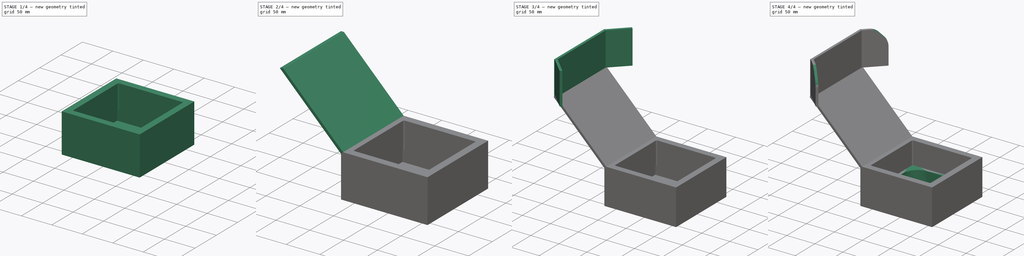
[diagram: build sequence overview — one tinted view per stage of 4, left to right]
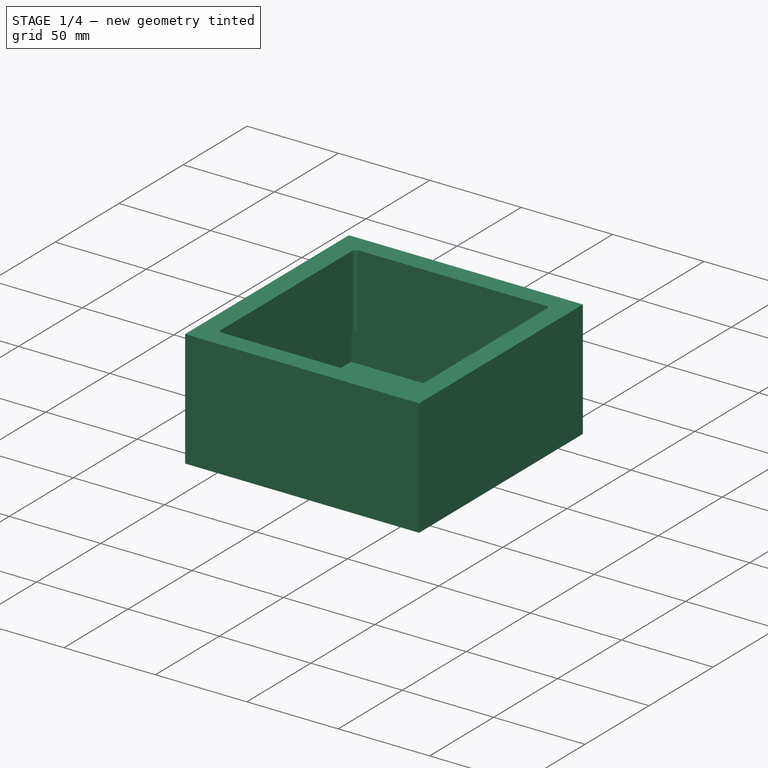
[diagram: stage 1 of 4 — iso view after this stage's code; geometry added in this stage tinted green]
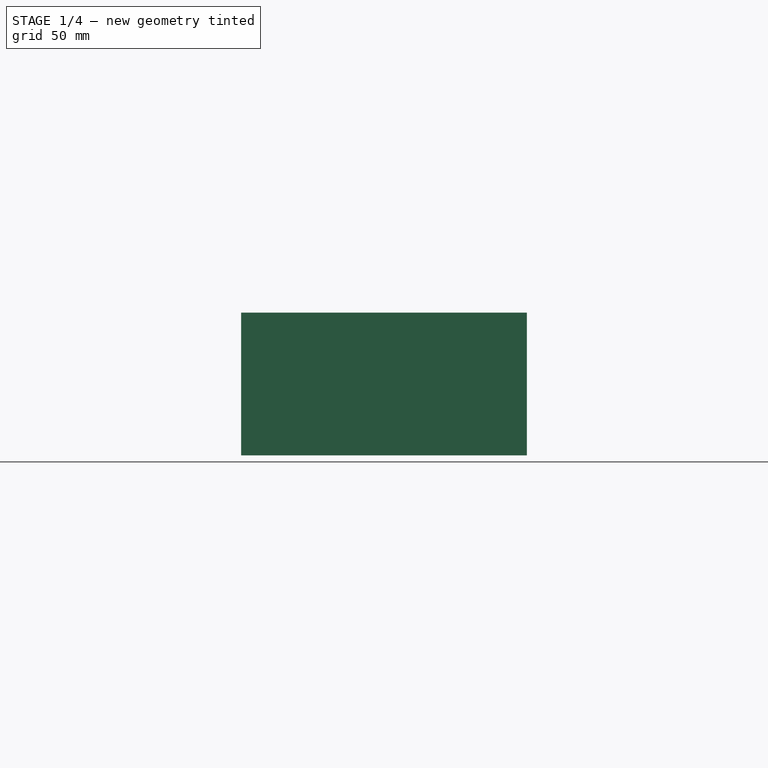
[diagram: stage 1 of 4 — front view after this stage's code; geometry added in this stage tinted green]
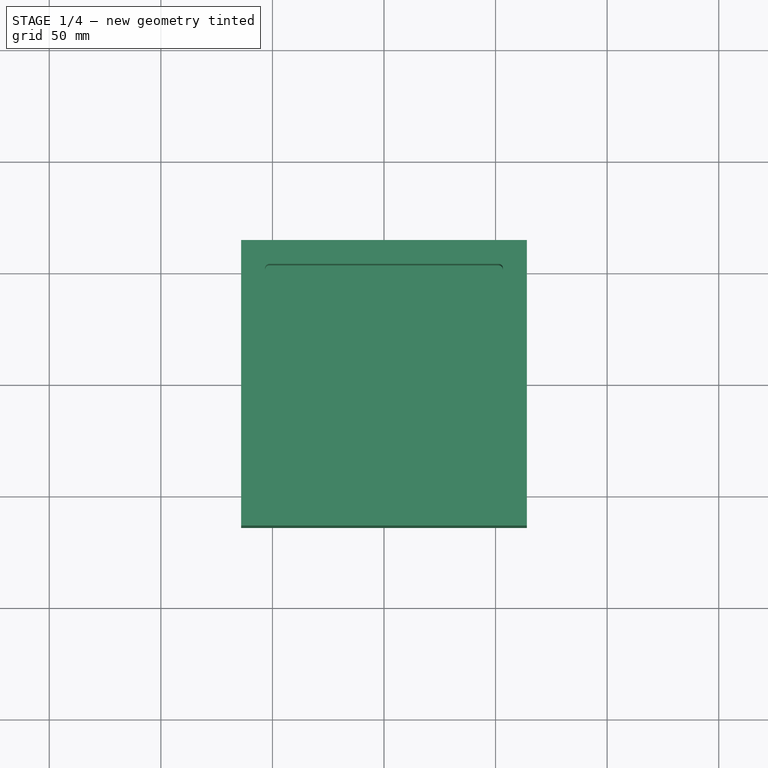
[diagram: stage 1 of 4 — top view after this stage's code; geometry added in this stage tinted green]
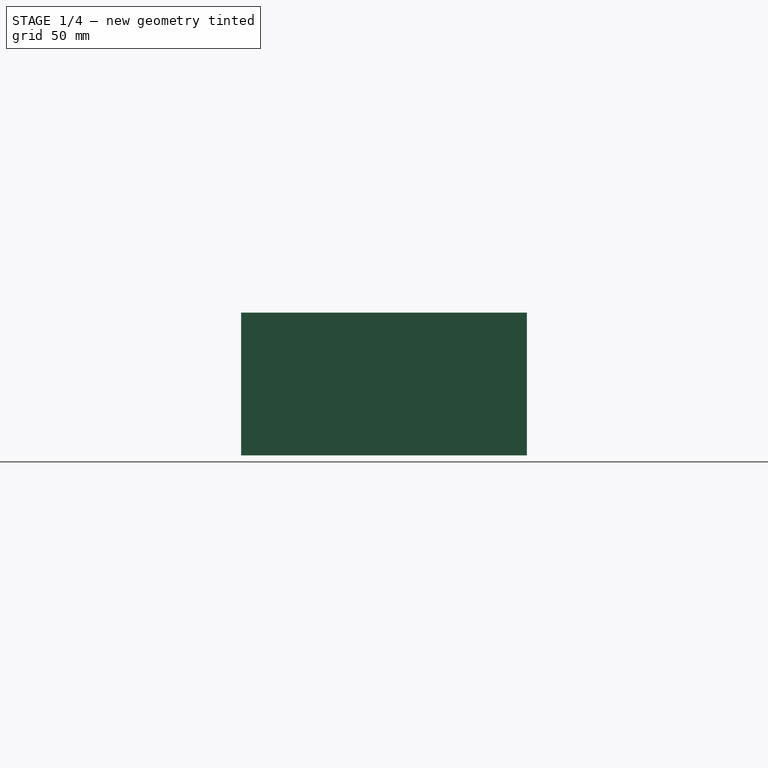
[diagram: stage 1 of 4 — right view after this stage's code; geometry added in this stage tinted green]
FCSTD DOCUMENT  (FreeCAD 0.18R15969 (Git))
Label: GridBox
License: All rights reserved
LicenseURL: http://en.wikipedia.org/wiki/All_rights_reserved
objects: PartDesign::Pad×8, TechDraw::DrawViewDimension×6, Sketcher::SketchObject×4, PartDesign::Chamfer×4, PartDesign::Body×3, TechDraw::DrawProjGroupItem×3, PartDesign::Fillet×1, TechDraw::DrawSVGTemplate×1, TechDraw::DrawProjGroup×1, TechDraw::DrawPage×1
note: 28 computed .brp shape members not serialized (recipe doc carries the construction recipe); baked Part::Feature solids carry a one-line shape summary decoded from their .brp

FEATURE [Sketcher::SketchObject] Sketch
  MapMode = 5
  Support = -> [XY_Plane]
  sketch-geometry (18):
    g0: LineSegment StartX=-60 StartY=-60 StartZ=0 EndX=60 EndY=-60 EndZ=0
    g1: LineSegment StartX=60 StartY=-60 StartZ=0 EndX=60 EndY=60 EndZ=0
    g2: LineSegment StartX=60 StartY=60 StartZ=0 EndX=-60 EndY=60 EndZ=0
    g3: LineSegment StartX=-60 StartY=60 StartZ=0 EndX=-60 EndY=-60 EndZ=0
    g4: LineSegment [constr] StartX=-60 StartY=60 StartZ=0 EndX=-7.1e-15 EndY=0 EndZ=0
    g5: LineSegment [constr] StartX=0 StartY=0 StartZ=0 EndX=60 EndY=60 EndZ=0
    g6: LineSegment [constr] StartX=0 StartY=0 StartZ=0 EndX=-60 EndY=-60 EndZ=0
    g7: LineSegment StartX=-51.3 StartY=-53.3 StartZ=0 EndX=51.3 EndY=-53.3 EndZ=0
    g8: LineSegment StartX=53.3 StartY=-51.3 StartZ=0 EndX=53.3 EndY=51.3 EndZ=0
    g9: LineSegment StartX=51.3 StartY=53.3 StartZ=0 EndX=-51.3 EndY=53.3 EndZ=0
    g10: LineSegment StartX=-53.3 StartY=51.3 StartZ=0 EndX=-53.3 EndY=-51.3 EndZ=0
    g11: ArcOfCircle CenterX=-51.3 CenterY=51.3 CenterZ=0 NormalX=0 NormalY=0 NormalZ=1 AngleXU=0 Radius=2 StartAngle=1.5708 EndAngle=3.14159
    g12: ArcOfCircle CenterX=51.3 CenterY=51.3 CenterZ=0 NormalX=0 NormalY=0 NormalZ=1 AngleXU=0 Radius=2 StartAngle=0 EndAngle=1.5708
    g13: ArcOfCircle CenterX=-51.3 CenterY=-51.3 CenterZ=0 NormalX=0 NormalY=0 NormalZ=1 AngleXU=0 Radius=2 StartAngle=3.14159 EndAngle=4.71239
    g14: ArcOfCircle CenterX=51.3 CenterY=-51.3 CenterZ=0 NormalX=0 NormalY=0 NormalZ=1 AngleXU=0 Radius=2 StartAngle=4.71239 EndAngle=6.28319
    g15: LineSegment [constr] StartX=-51.3 StartY=51.3 StartZ=0 EndX=0 EndY=0 EndZ=0
    g16: LineSegment [constr] StartX=0 StartY=0 StartZ=0 EndX=51.3 EndY=51.3 EndZ=0
    g17: LineSegment [constr] StartX=0 StartY=0 StartZ=0 EndX=-51.3 EndY=-51.3 EndZ=0
  constraints (44):
    c: Coincident(g0,g1)
    c: Coincident(g1,g2)
    c: Coincident(g2,g3)
    c: Coincident(g3,g0)
    c: Horizontal(g0)
    c: Horizontal(g2)
    c: Vertical(g1)
    c: Vertical(g3)
    c: Coincident(g4,g2)
    c: Coincident(g4,g-1)
    c: Coincident(g5,g-1)
    c: Coincident(g5,g1)
    c: Coincident(g6,g-1)
    c: Coincident(g6,g0)
    c: Equal(g6,g4)
    c: Equal(g4,g5)
    c: DistanceX(g2,g2) = 120
    c: DistanceY(g3,g3) = 120
    c: Horizontal(g7)
    c: Horizontal(g9)
    c: Vertical(g8)
    c: Vertical(g10)
    c: Tangent(g10,g11) = -1.5708
    c: Tangent(g9,g11) = -1.5708
    c: Tangent(g9,g12) = -1.5708
    c: Tangent(g8,g12) = -1.5708
    c: Tangent(g10,g13) = -1.5708
    c: Tangent(g7,g13) = -1.5708
    c: Tangent(g7,g14) = -1.5708
    c: Tangent(g8,g14) = -1.5708
    c: Equal(g9,g10)
    c: Equal(g13,g11)
    c: Equal(g11,g12)
    c: Equal(g12,g14)
    c: Coincident(g15,g11)
    c: Coincident(g15,g-1)
    c: Coincident(g16,g-1)
    c: Coincident(g16,g12)
    c: Coincident(g17,g-1)
    c: Coincident(g17,g13)
    c: Equal(g17,g15)
    c: Equal(g15,g16)
    c: DistanceX(g10,g8) = 106.6
    c: Radius(g11) = 2
FEATURE [PartDesign::Pad] Pad
  Length = 40
  Length2 = 100
  Profile = -> Sketch
  Refine = true
  Type = 0
FEATURE [PartDesign::Body] Body001  label="Lower"
  Group = -> [Sketch001,Pad001]
  Origin = -> Origin001
  Tip = -> Pad001
FEATURE [Sketcher::SketchObject] Sketch002
  AttachmentOffset = pos=(0,0,-20) rot=(0,0,1;0rad)
  MapMode = 5
  Placement = pos=(0,0,-20) rot=(0,0,1;0rad)
  Support = -> [XY_Plane002]
  sketch-geometry (5):
    g0: LineSegment StartX=64 StartY=64 StartZ=0 EndX=-64 EndY=64 EndZ=0
    g1: LineSegment StartX=-64 StartY=64 StartZ=0 EndX=-64 EndY=-64 EndZ=0
    g2: LineSegment StartX=-64 StartY=-64 StartZ=0 EndX=64 EndY=-64 EndZ=0
    g3: LineSegment StartX=64 StartY=-64 StartZ=0 EndX=64 EndY=64 EndZ=0
    g4: Circle [constr] CenterX=0 CenterY=0 CenterZ=0 NormalX=0 NormalY=0 NormalZ=1 AngleXU=0 Radius=90.5097
  constraints (14):
    c: Coincident(g0,g1)
    c: Coincident(g1,g2)
    c: Coincident(g2,g3)
    c: Coincident(g3,g0)
    c: Equal(g0,g1)
    c: Equal(g0,g2)
    c: Equal(g0,g3)
    c: PointOnObject(g0,g4)
    c: PointOnObject(g1,g4)
    c: PointOnObject(g2,g4)
    c: PointOnObject(g3,g4)
    c: Coincident(g4,g-1)
    c: Horizontal(g0)
    c: DistanceX(g0,g0) = 128
FEATURE [PartDesign::Pad] Pad002
  Length = 4
  Length2 = 100
  Profile = -> Sketch002
  Refine = true
  Reversed = true
  Type = 0
FEATURE [Sketcher::SketchObject] Sketch003
  MapMode = 5
  Placement = pos=(0,0,-20) rot=(0,0,1;0rad)
  Support = -> [Pad002]
  sketch-geometry (10):
    g0: LineSegment StartX=64 StartY=64 StartZ=0 EndX=-64 EndY=64 EndZ=0
    g1: LineSegment StartX=-64 StartY=64 StartZ=0 EndX=-64 EndY=-64 EndZ=0
    g2: LineSegment StartX=-64 StartY=-64 StartZ=0 EndX=64 EndY=-64 EndZ=0
    g3: LineSegment StartX=64 StartY=-64 StartZ=0 EndX=64 EndY=64 EndZ=0
    g4: Circle [constr] CenterX=0 CenterY=0 CenterZ=0 NormalX=0 NormalY=0 NormalZ=1 AngleXU=0 Radius=90.5097
    g5: LineSegment StartX=60 StartY=60 StartZ=0 EndX=-60 EndY=60 EndZ=0
    g6: LineSegment StartX=-60 StartY=60 StartZ=0 EndX=-60 EndY=-60 EndZ=0
    g7: LineSegment StartX=-60 StartY=-60 StartZ=0 EndX=60 EndY=-60 EndZ=0
    g8: LineSegment StartX=60 StartY=-60 StartZ=0 EndX=60 EndY=60 EndZ=0
    g9: Circle [constr] CenterX=0 CenterY=0 CenterZ=0 NormalX=0 NormalY=0 NormalZ=1 AngleXU=0 Radius=84.8528
  constraints (28):
    c: Coincident(g0,g1)
    c: Coincident(g1,g2)
    c: Coincident(g2,g3)
    c: Coincident(g3,g0)
    c: Equal(g0,g1)
    c: Equal(g0,g2)
    c: Equal(g0,g3)
    c: PointOnObject(g0,g4)
    c: PointOnObject(g1,g4)
    c: PointOnObject(g2,g4)
    c: PointOnObject(g3,g4)
    c: Coincident(g4,g-1)
    c: DistanceX(g0,g0) = 128
    c: Horizontal(g0)
    c: Coincident(g5,g6)
    c: Coincident(g6,g7)
    c: Coincident(g7,g8)
    c: Coincident(g8,g5)
    c: Equal(g5,g6)
    c: Equal(g5,g7)
    c: Equal(g5,g8)
    c: PointOnObject(g5,g9)
    c: PointOnObject(g6,g9)
    c: PointOnObject(g7,g9)
    c: PointOnObject(g8,g9)
    c: Coincident(g9,g-1)
    c: Horizontal(g5)
    c: DistanceX(g5,g5) = 120
FEATURE [PartDesign::Pad] Pad003
  BaseFeature = -> Pad002
  Length = 60
  Length2 = 100
  Profile = -> Sketch003
  Refine = true
  Type = 0
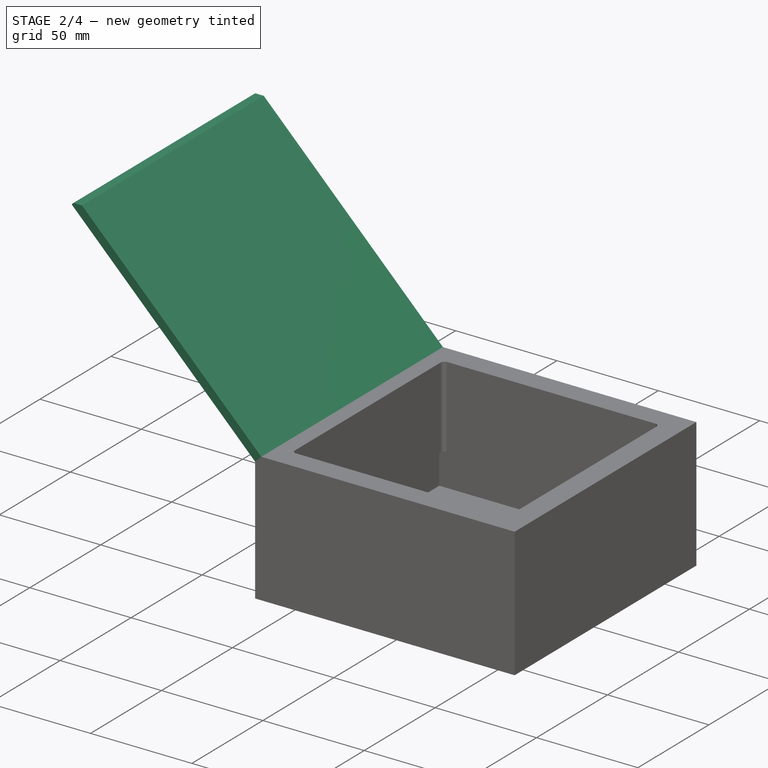
[diagram: stage 2 of 4 — iso view after this stage's code; geometry added in this stage tinted green]
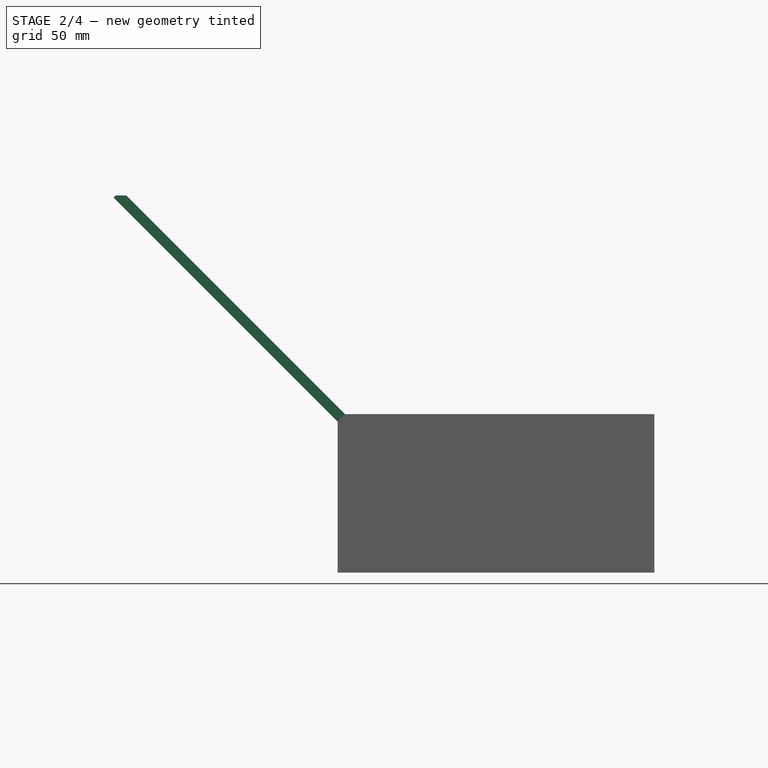
[diagram: stage 2 of 4 — front view after this stage's code; geometry added in this stage tinted green]
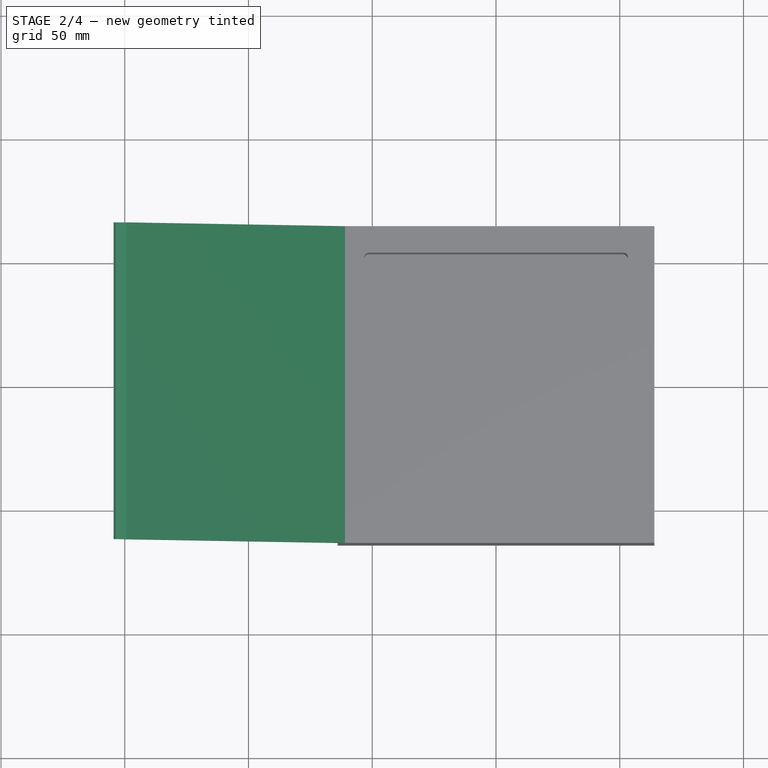
[diagram: stage 2 of 4 — top view after this stage's code; geometry added in this stage tinted green]
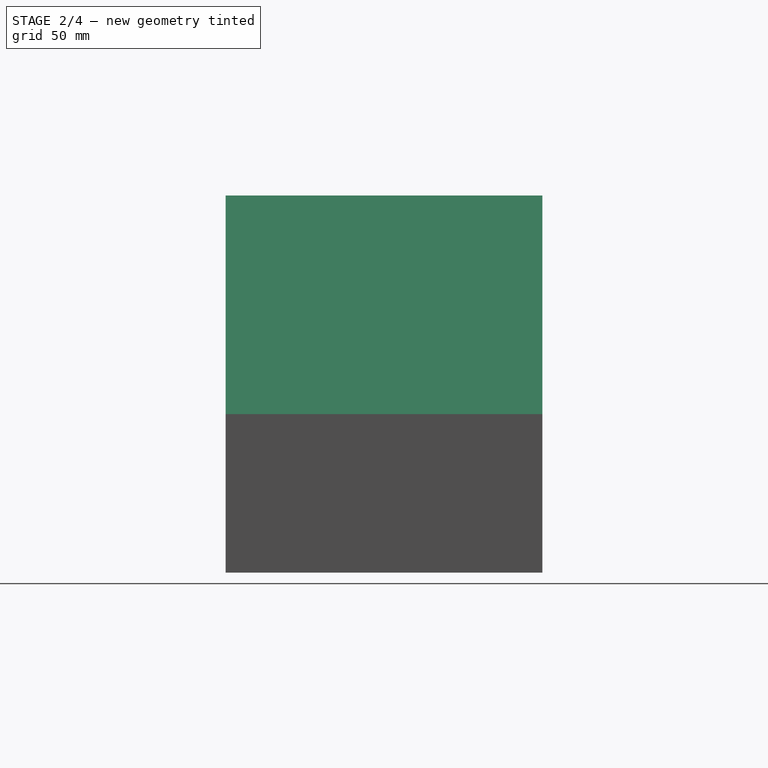
[diagram: stage 2 of 4 — right view after this stage's code; geometry added in this stage tinted green]
FEATURE [PartDesign::Chamfer] Chamfer
  Base = -> Pad003 [Edge8]
  BaseFeature = -> Pad003
  Size = 3
FEATURE [PartDesign::Pad] Pad004
  BaseFeature = -> Chamfer
  Length = 128
  Length2 = 100
  Profile = -> Chamfer [Face3]
  Refine = true
  Type = 0
FEATURE [PartDesign::Chamfer] Chamfer001
  Base = -> Pad004 [Edge23]
  BaseFeature = -> Pad004
  Size = 3
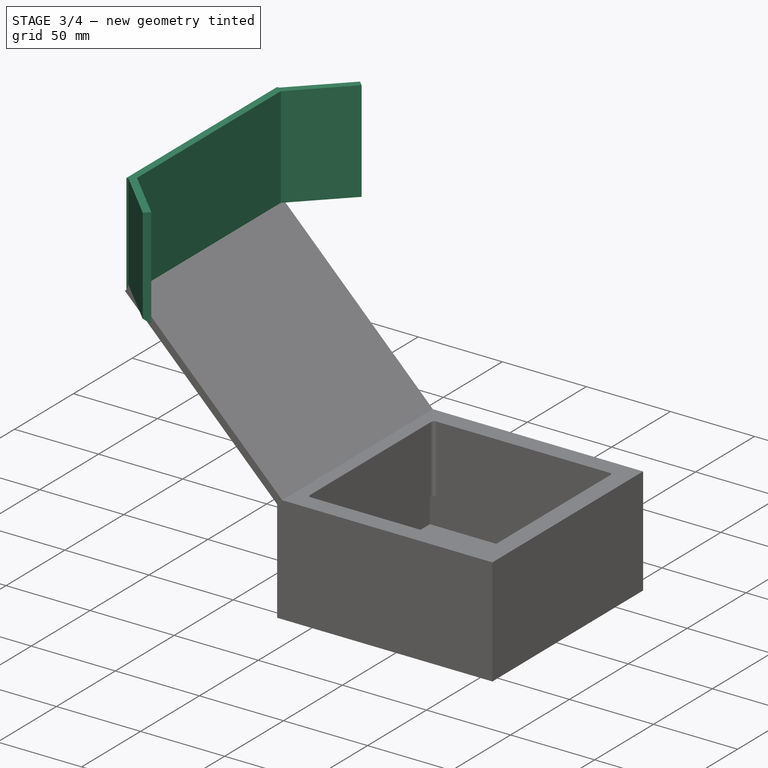
[diagram: stage 3 of 4 — iso view after this stage's code; geometry added in this stage tinted green]
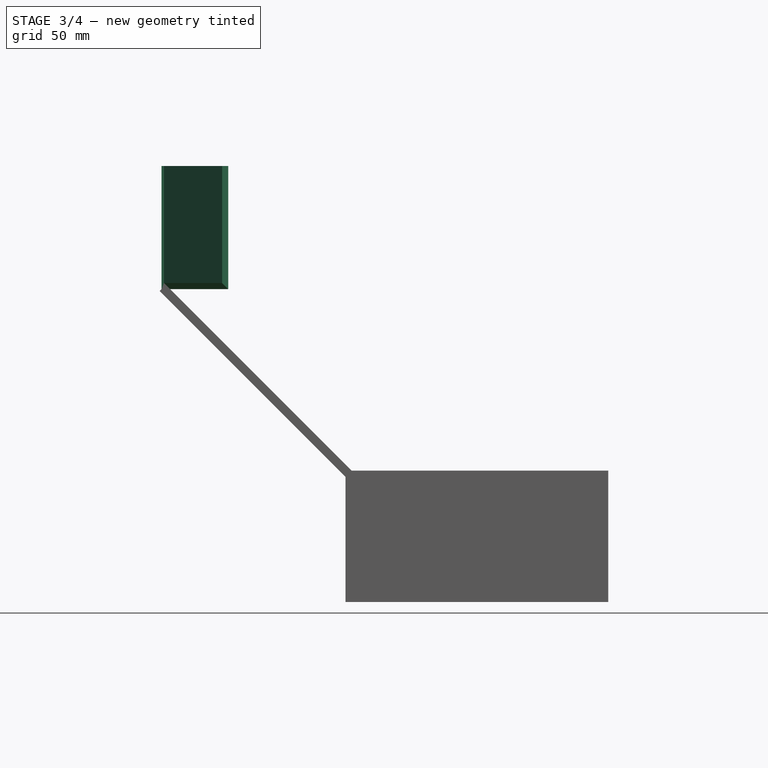
[diagram: stage 3 of 4 — front view after this stage's code; geometry added in this stage tinted green]
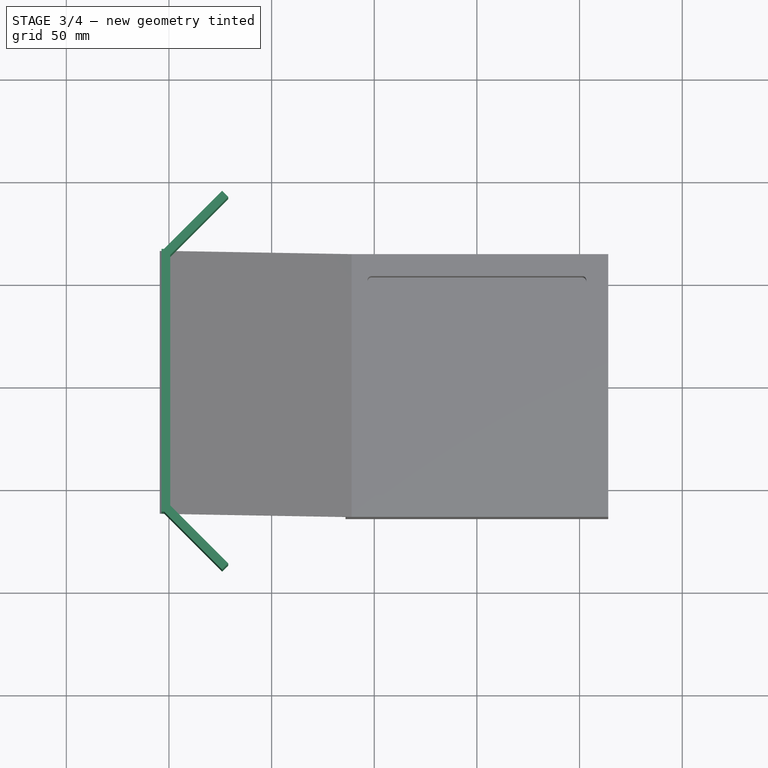
[diagram: stage 3 of 4 — top view after this stage's code; geometry added in this stage tinted green]
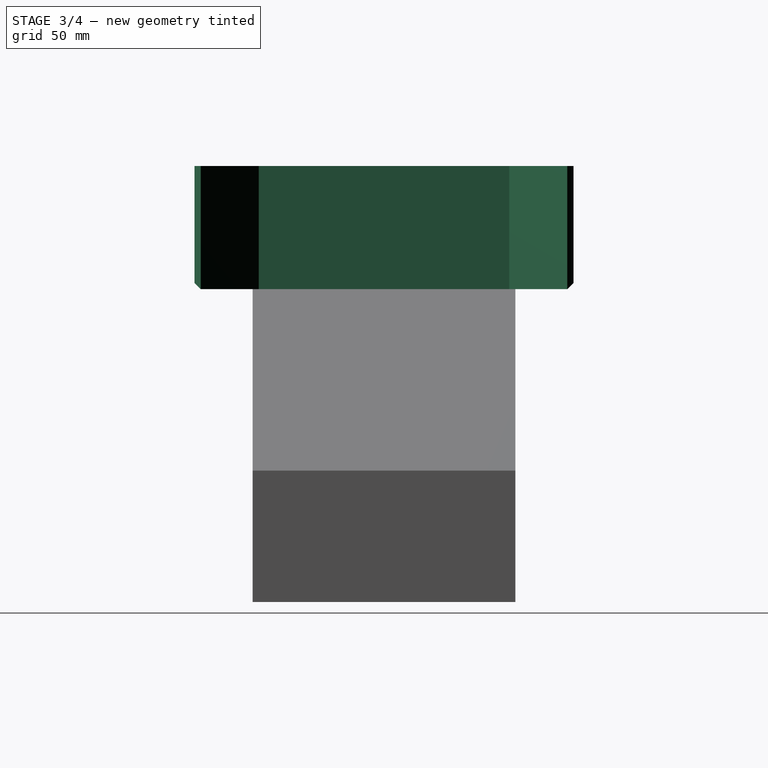
[diagram: stage 3 of 4 — right view after this stage's code; geometry added in this stage tinted green]
FEATURE [PartDesign::Pad] Pad005
  BaseFeature = -> Chamfer001
  Length = 60
  Length2 = 100
  Profile = -> Chamfer001 [Face3]
  Refine = true
  Type = 0
FEATURE [PartDesign::Chamfer] Chamfer002
  Base = -> Pad005 [Edge22,Edge21]
  BaseFeature = -> Pad005
  Size = 3
FEATURE [PartDesign::Pad] Pad006
  BaseFeature = -> Chamfer002
  Length = 40
  Length2 = 100
  Profile = -> Chamfer002 [Face4]
  Refine = true
  Type = 0
FEATURE [PartDesign::Pad] Pad007
  BaseFeature = -> Pad006
  Length = 40
  Length2 = 100
  Profile = -> Pad006 [Face3]
  Refine = true
  Type = 0
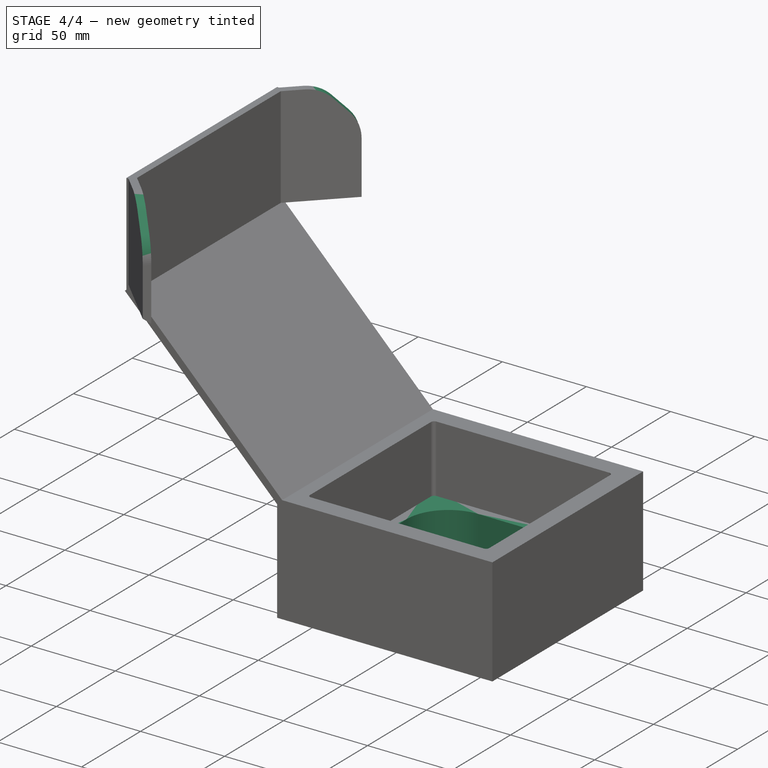
[diagram: stage 4 of 4 — iso view after this stage's code; geometry added in this stage tinted green]
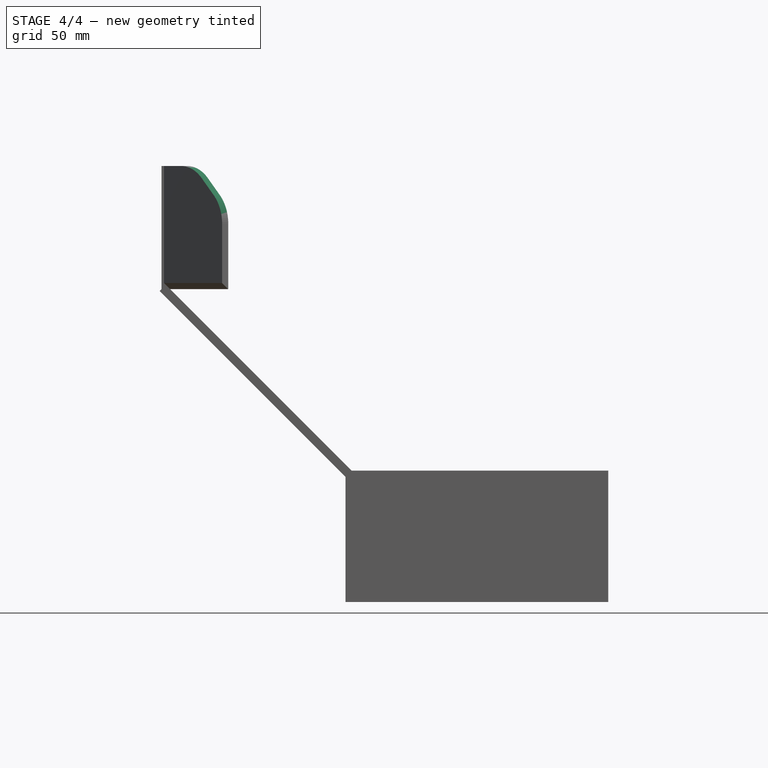
[diagram: stage 4 of 4 — front view after this stage's code; geometry added in this stage tinted green]
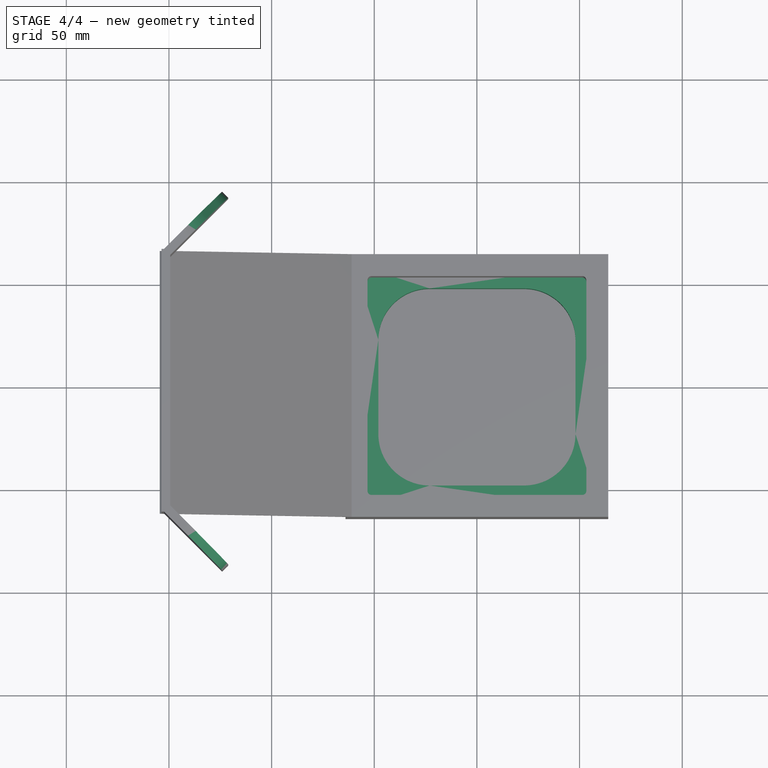
[diagram: stage 4 of 4 — top view after this stage's code; geometry added in this stage tinted green]
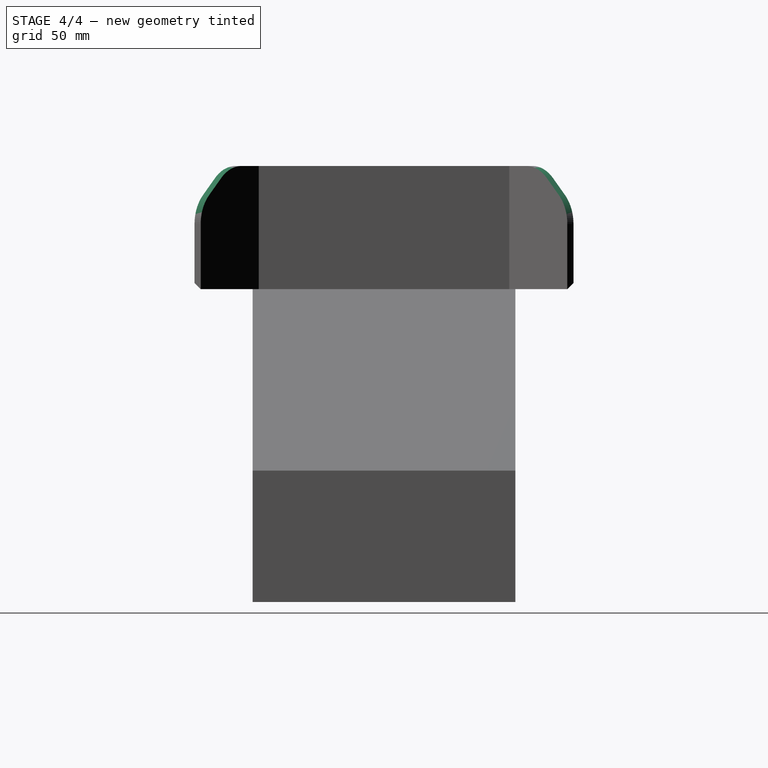
[diagram: stage 4 of 4 — right view after this stage's code; geometry added in this stage tinted green]
FEATURE [PartDesign::Body] Body  label="Upper"
  Group = -> [Sketch,Pad]
  Origin = -> Origin
  Tip = -> Pad
FEATURE [Sketcher::SketchObject] Sketch001
  MapMode = 5
  Support = -> [XY_Plane001]
  sketch-geometry (16):
    g0: LineSegment StartX=60 StartY=60 StartZ=0 EndX=-60 EndY=60 EndZ=0
    g1: LineSegment StartX=-60 StartY=60 StartZ=0 EndX=-60 EndY=-60 EndZ=0
    g2: LineSegment StartX=-60 StartY=-60 StartZ=0 EndX=60 EndY=-60 EndZ=0
    g3: LineSegment StartX=60 StartY=-60 StartZ=0 EndX=60 EndY=60 EndZ=0
    g4: Circle [constr] CenterX=0 CenterY=0 CenterZ=0 NormalX=0 NormalY=0 NormalZ=1 AngleXU=0 Radius=84.8528
    g5: LineSegment StartX=-23 StartY=-48 StartZ=0 EndX=23 EndY=-48 EndZ=0
    g6: LineSegment StartX=48 StartY=-23 StartZ=0 EndX=48 EndY=23 EndZ=0
    g7: LineSegment StartX=23 StartY=48 StartZ=0 EndX=-23 EndY=48 EndZ=0
    g8: LineSegment StartX=-48 StartY=23 StartZ=0 EndX=-48 EndY=-23 EndZ=0
    g9: ArcOfCircle CenterX=-23 CenterY=23 CenterZ=0 NormalX=0 NormalY=0 NormalZ=1 AngleXU=0 Radius=25 StartAngle=1.5708 EndAngle=3.14159
    g10: ArcOfCircle CenterX=23 CenterY=23 CenterZ=0 NormalX=0 NormalY=0 NormalZ=1 AngleXU=0 Radius=25 StartAngle=2e-16 EndAngle=1.5708
    g11: ArcOfCircle CenterX=-23 CenterY=-23 CenterZ=0 NormalX=0 NormalY=0 NormalZ=1 AngleXU=0 Radius=25 StartAngle=3.14159 EndAngle=4.71239
    g12: ArcOfCircle CenterX=23 CenterY=-23 CenterZ=0 NormalX=0 NormalY=0 NormalZ=1 AngleXU=0 Radius=25 StartAngle=4.71239 EndAngle=6.28319
    g13: LineSegment [constr] StartX=-23 StartY=23 StartZ=0 EndX=0 EndY=0 EndZ=0
    g14: LineSegment [constr] StartX=-23 StartY=-23 StartZ=0 EndX=0 EndY=0 EndZ=0
    g15: LineSegment [constr] StartX=0 StartY=0 StartZ=0 EndX=23 EndY=23 EndZ=0
  constraints (40):
    c: Coincident(g0,g1)
    c: Coincident(g1,g2)
    c: Coincident(g2,g3)
    c: Coincident(g3,g0)
    c: Equal(g0,g1)
    c: Equal(g0,g2)
    c: Equal(g0,g3)
    c: PointOnObject(g0,g4)
    c: PointOnObject(g1,g4)
    c: PointOnObject(g2,g4)
    c: PointOnObject(g3,g4)
    c: Coincident(g4,g-1)
    c: Horizontal(g0)
    c: DistanceX(g0,g0) = 120
    c: Horizontal(g5)
    c: Horizontal(g7)
    c: Vertical(g6)
    c: Vertical(g8)
    c: Tangent(g8,g9) = -1.5708
    c: Tangent(g7,g9) = -1.5708
    c: Tangent(g7,g10) = -1.5708
    c: Tangent(g6,g10) = -1.5708
    c: Tangent(g8,g11) = -1.5708
    c: Tangent(g5,g11) = -1.5708
    c: Tangent(g5,g12) = -1.5708
    c: Tangent(g6,g12) = -1.5708
    c: Radius(g12) = 25
    c: Equal(g12,g11)
    c: Equal(g12,g9)
    c: Equal(g12,g10)
    c: Coincident(g13,g9)
    c: Coincident(g13,g-1)
    c: Coincident(g14,g11)
    c: Coincident(g14,g-1)
    c: Coincident(g15,g-1)
    c: Coincident(g15,g10)
    c: Equal(g15,g13)
    c: Equal(g13,g14)
    c: Equal(g8,g7)
    c: DistanceX(g8,g6) = 96
FEATURE [PartDesign::Pad] Pad001
  Length = 20
  Length2 = 100
  Profile = -> Sketch001
  Refine = true
  Reversed = true
  Type = 0
FEATURE [PartDesign::Chamfer] Chamfer003
  Base = -> Pad007 [Edge48,Edge45]
  BaseFeature = -> Pad007
  Size = 20
FEATURE [PartDesign::Fillet] Fillet
  Base = -> Chamfer003 [Edge28,Edge7,Edge14,Edge15]
  BaseFeature = -> Chamfer003
  Radius = 20
FEATURE [PartDesign::Body] Body002  label="Cardboard"
  Group = -> [Sketch002,Pad002,Sketch003,Pad003,Chamfer,Pad004,Chamfer001,Pad005,Chamfer002,Pad006,Pad007,Chamfer003,Fillet]
  Origin = -> Origin002
  Tip = -> Fillet
FEATURE [TechDraw::DrawSVGTemplate] Template
  EditableTexts = Designed_by_Name=Suku; FC-Date=2019.07.13.; FC-SC=0.5; FC-SH=1/1; FC-Title=Intech Grid Foam Insert; Subtitle=120x120x40; Weight=N/A
  Height = 210
  Orientation = 1
  Width = 297
FEATURE [TechDraw::DrawProjGroupItem] ProjItem  label="Front"
  CoarseView = false
  Direction = (0,0,1)
  Focus = 100
  HardHidden = false
  IsoCount = 0
  IsoHidden = false
  IsoVisible = false
  LockPosition = true
  Perspective = false
  Rotation = 0
  RotationVector = (1,0,0)
  Scale = 0.5
  ScaleType = 2
  SeamHidden = false
  SeamVisible = false
  SmoothHidden = false
  SmoothVisible = false
  Source = -> [Pad]
  Type = 0
  X = 0
  Y = 0
FEATURE [TechDraw::DrawProjGroupItem] ProjItem002  label="Top"
  CoarseView = false
  Direction = (0,1,0)
  Focus = 100
  HardHidden = false
  IsoCount = 0
  IsoHidden = false
  IsoVisible = false
  LockPosition = true
  Perspective = false
  Rotation = 0
  RotationVector = (1,0,0)
  Scale = 0.5
  ScaleType = 2
  SeamHidden = false
  SeamVisible = false
  SmoothHidden = false
  SmoothVisible = false
  Source = -> [Pad]
  Type = 4
  X = 0
  Y = -74.236
FEATURE [TechDraw::DrawProjGroupItem] ProjItem003  label="FrontTopLeft"
  CoarseView = false
  Direction = (-1,1,1)
  Focus = 100
  HardHidden = false
  IsoCount = 0
  IsoHidden = false
  IsoVisible = false
  LockPosition = true
  Perspective = false
  Rotation = 0
  RotationVector = (1,0,1)
  Scale = 0.5
  ScaleType = 2
  SeamHidden = false
  SeamVisible = false
  SmoothHidden = false
  SmoothVisible = false
  Source = -> [Pad]
  Type = 6
  X = 117.156
  Y = 1.11198
FEATURE [TechDraw::DrawProjGroup] ProjGroup
  Anchor = -> ProjItem
  AutoDistribute = true
  LockPosition = false
  ProjectionType = 0
  Rotation = 0
  Scale = 0.5
  ScaleType = 0
  Source = -> [Pad]
  Views = -> [ProjItem,ProjItem002,ProjItem003]
  X = 80.855
  Y = 134.568
  spacingX = 15
  spacingY = 15
FEATURE [TechDraw::DrawViewDimension] Dimension
  Arbitrary = false
  FormatSpec = %.2f
  LockPosition = false
  MeasureType = 1
  OverTolerance = 0
  References2D = -> [ProjItem]
  Rotation = 0
  Scale = 0.5
  ScaleType = 0
  Type = 1
  UnderTolerance = 0
  X = -0.04344
  Y = 50.9844
FEATURE [TechDraw::DrawViewDimension] Dimension001
  Arbitrary = false
  FormatSpec = %.2f
  LockPosition = false
  MeasureType = 1
  OverTolerance = 0
  References2D = -> [ProjItem]
  Rotation = 0
  Scale = 0.5
  ScaleType = 0
  Type = 2
  UnderTolerance = 0
  X = -55.1138
  Y = 1.24189
FEATURE [TechDraw::DrawViewDimension] Dimension002
  Arbitrary = false
  FormatSpec = %.2f
  LockPosition = false
  MeasureType = 1
  OverTolerance = 0
  References2D = -> [ProjItem002]
  Rotation = 0
  Scale = 0.5
  ScaleType = 0
  Type = 2
  UnderTolerance = 0
  X = -41.867
  Y = 0.551951
FEATURE [TechDraw::DrawViewDimension] Dimension003
  Arbitrary = false
  FormatSpec = %.2f
  LockPosition = false
  MeasureType = 1
  OverTolerance = 0
  References2D = -> [ProjItem]
  Rotation = 0
  Scale = 0.5
  ScaleType = 0
  Type = 1
  UnderTolerance = 0
  X = -0.319416
  Y = 41.6208
FEATURE [TechDraw::DrawViewDimension] Dimension004
  Arbitrary = false
  FormatSpec = %.2f
  LockPosition = false
  MeasureType = 1
  OverTolerance = 0
  References2D = -> [ProjItem]
  Rotation = 0
  Scale = 0.5
  ScaleType = 0
  Type = 2
  UnderTolerance = 0
  X = -43.8184
  Y = 0
FEATURE [TechDraw::DrawViewDimension] Dimension005
  Arbitrary = false
  FormatSpec = R%.2f
  LockPosition = false
  MeasureType = 1
  OverTolerance = 0
  References2D = -> [ProjItem]
  Rotation = 0
  Scale = 0.5
  ScaleType = 0
  Type = 4
  UnderTolerance = 0
  X = 53.9434
  Y = 29.8876
FEATURE [TechDraw::DrawPage] Page
  KeepUpdated = true
  ProjectionType = 0
  Scale = 0.5
  Template = -> Template
  Views = -> [ProjGroup,Dimension,Dimension001,Dimension002,Dimension003,Dimension004,Dimension005]
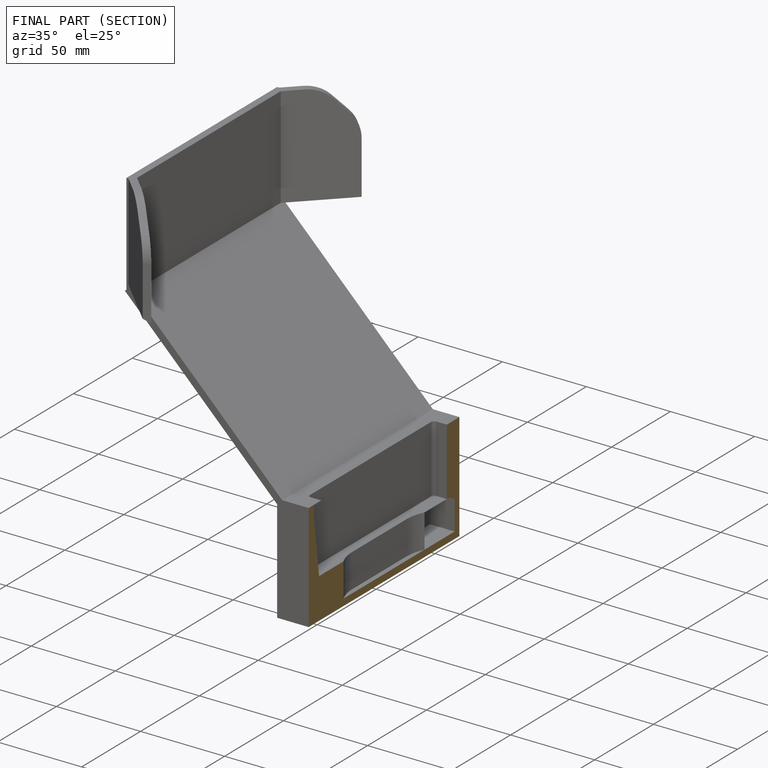
[diagram: finished part — half-section view (interior)]
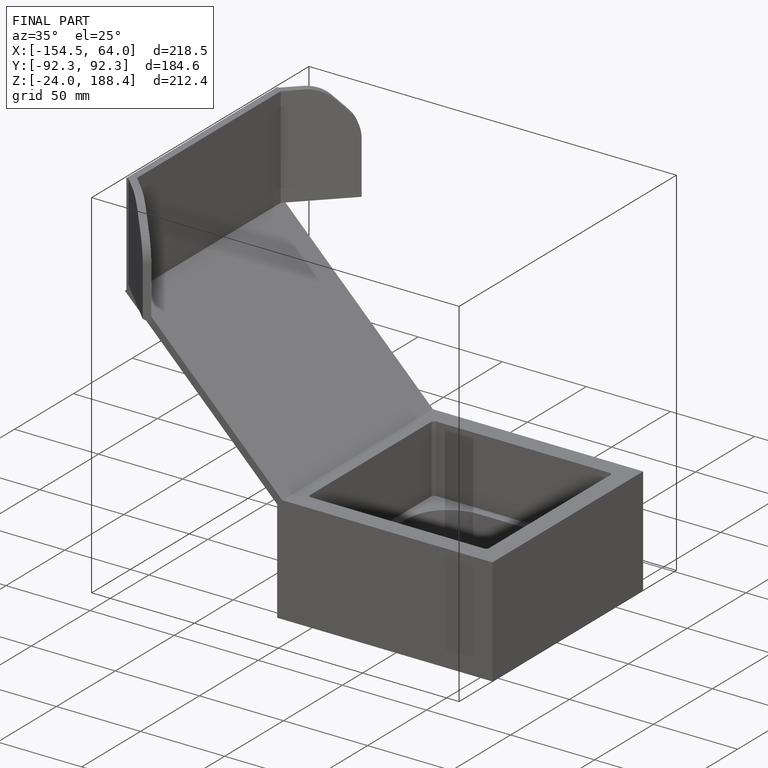
[diagram: finished part — iso view with bounding-box wireframe]
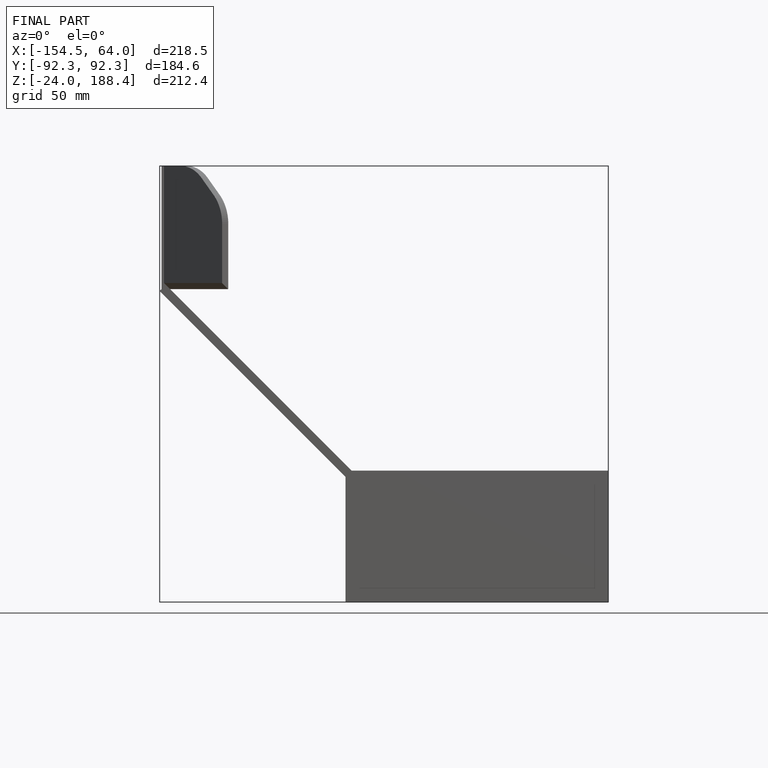
[diagram: finished part — front view with bounding-box wireframe]
